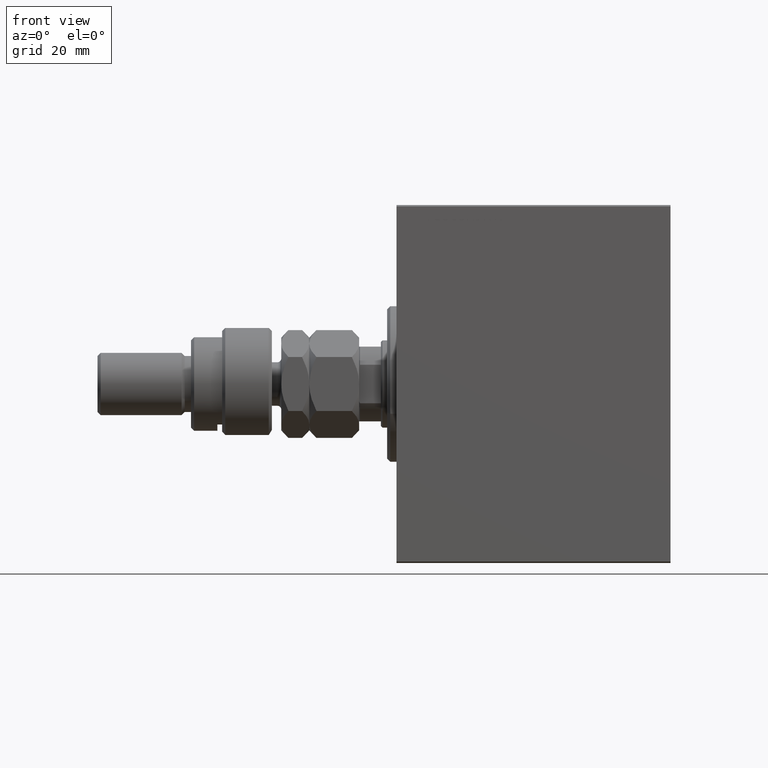
[diagram: clean part render]
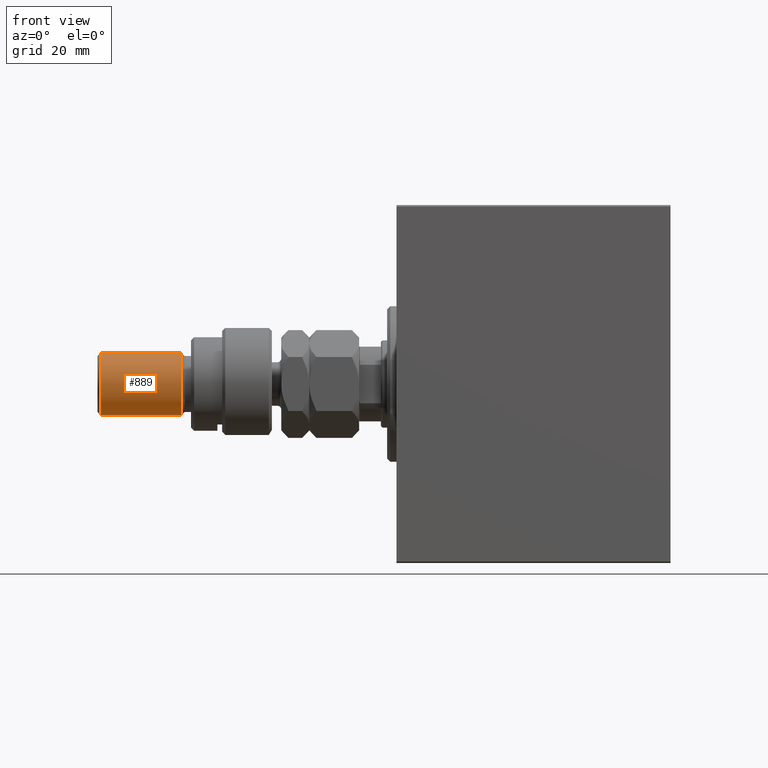
[diagram: same view with one face highlighted and labeled with its STEP entity id]
A machine part, front view. The second image highlights one B-rep face of the part: STEP entity #889.
In plain terms, the highlighted cylindrical surface (edge-blend (fillet) strip) has radius 10 mm, axis along (1, -0, -0).
Its self-contained STEP definition (entity closure, byte-faithful):
#477 = CYLINDRICAL_SURFACE ( 'NONE', #33766, 10.00000000000000000 ) ;
#889 = ADVANCED_FACE ( 'NONE', ( #36330 ), #477, .T. ) ;
#1353 = VERTEX_POINT ( 'NONE', #5029 ) ;
#3200 = CIRCLE ( 'NONE', #32610, 10.00000000000000000 ) ;
#4042 = DIRECTION ( 'NONE',  ( 0.000000000000000000, 0.000000000000000000, -1.000000000000000000 ) ) ;
#4490 = CARTESIAN_POINT ( 'NONE',  ( -10.00000000000000000, 0.000000000000000000, 54.99999999999998579 ) ) ;
#5029 = CARTESIAN_POINT ( 'NONE',  ( -10.00000000000000000, 0.000000000000000000, 29.00000000000000711 ) ) ;
#7322 = CARTESIAN_POINT ( 'NONE',  ( -10.00000000000000000, 0.000000000000000000, 56.00000000000000711 ) ) ;
#10616 = LINE ( 'NONE', #7322, #34311 ) ;
#12085 = ORIENTED_EDGE ( 'NONE', *, *, #45930, .T. ) ;
#13939 = EDGE_CURVE ( 'NONE', #36124, #24525, #37844, .T. ) ;
#14880 = CARTESIAN_POINT ( 'NONE',  ( 0.000000000000000000, 0.000000000000000000, 56.00000000000000711 ) ) ;
#15009 = CARTESIAN_POINT ( 'NONE',  ( 0.000000000000000000, 0.000000000000000000, 29.00000000000000711 ) ) ;
#15154 = VECTOR ( 'NONE', #27488, 1000.000000000000000 ) ;
#15298 = VERTEX_POINT ( 'NONE', #4490 ) ;
#17044 = ORIENTED_EDGE ( 'NONE', *, *, #13939, .F. ) ;
#17244 = EDGE_CURVE ( 'NONE', #1353, #24525, #3200, .T. ) ;
#23078 = EDGE_LOOP ( 'NONE', ( #17044, #12085, #42323, #41876 ) ) ;
#23494 = CARTESIAN_POINT ( 'NONE',  ( 10.00000000000000000, 1.224646799147353256E-15, 56.00000000000000711 ) ) ;
#24525 = VERTEX_POINT ( 'NONE', #40149 ) ;
#25756 = DIRECTION ( 'NONE',  ( -1.000000000000000000, 0.000000000000000000, 0.000000000000000000 ) ) ;
#27488 = DIRECTION ( 'NONE',  ( -0.000000000000000000, -0.000000000000000000, -1.000000000000000000 ) ) ;
#28373 = EDGE_CURVE ( 'NONE', #15298, #1353, #10616, .T. ) ;
#28617 = CIRCLE ( 'NONE', #40650, 10.00000000000000000 ) ;
#29281 = DIRECTION ( 'NONE',  ( -0.000000000000000000, -0.000000000000000000, -1.000000000000000000 ) ) ;
#29413 = DIRECTION ( 'NONE',  ( -0.000000000000000000, -0.000000000000000000, 1.000000000000000000 ) ) ;
#32610 = AXIS2_PLACEMENT_3D ( 'NONE', #15009, #29413, #44237 ) ;
#33307 = CARTESIAN_POINT ( 'NONE',  ( 0.000000000000000000, 0.000000000000000000, 54.99999999999998579 ) ) ;
#33766 = AXIS2_PLACEMENT_3D ( 'NONE', #14880, #29281, #25756 ) ;
#34311 = VECTOR ( 'NONE', #43634, 1000.000000000000000 ) ;
#36124 = VERTEX_POINT ( 'NONE', #36696 ) ;
#36330 = FACE_OUTER_BOUND ( 'NONE', #23078, .T. ) ;
#36696 = CARTESIAN_POINT ( 'NONE',  ( 10.00000000000000000, 1.224646799147353256E-15, 54.99999999999998579 ) ) ;
#37844 = LINE ( 'NONE', #23494, #15154 ) ;
#40149 = CARTESIAN_POINT ( 'NONE',  ( 10.00000000000000000, 1.224646799147353256E-15, 29.00000000000000711 ) ) ;
#40577 = DIRECTION ( 'NONE',  ( 1.000000000000000000, 0.000000000000000000, 0.000000000000000000 ) ) ;
#40650 = AXIS2_PLACEMENT_3D ( 'NONE', #33307, #4042, #40577 ) ;
#41876 = ORIENTED_EDGE ( 'NONE', *, *, #17244, .T. ) ;
#42323 = ORIENTED_EDGE ( 'NONE', *, *, #28373, .T. ) ;
#43634 = DIRECTION ( 'NONE',  ( -0.000000000000000000, -0.000000000000000000, -1.000000000000000000 ) ) ;
#44237 = DIRECTION ( 'NONE',  ( 1.000000000000000000, 0.000000000000000000, 0.000000000000000000 ) ) ;
#45930 = EDGE_CURVE ( 'NONE', #36124, #15298, #28617, .T. ) ;